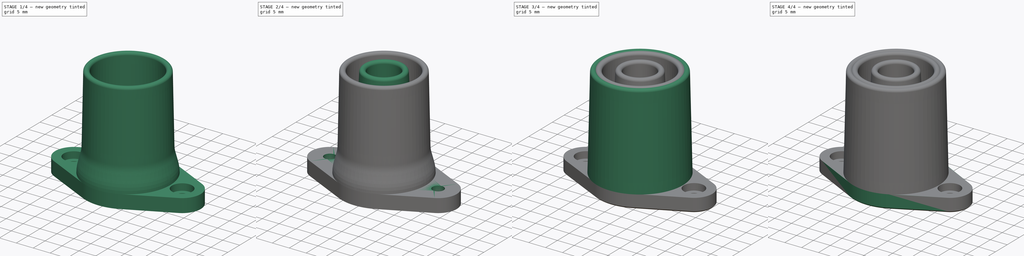
[diagram: build sequence overview — one tinted view per stage of 4, left to right]
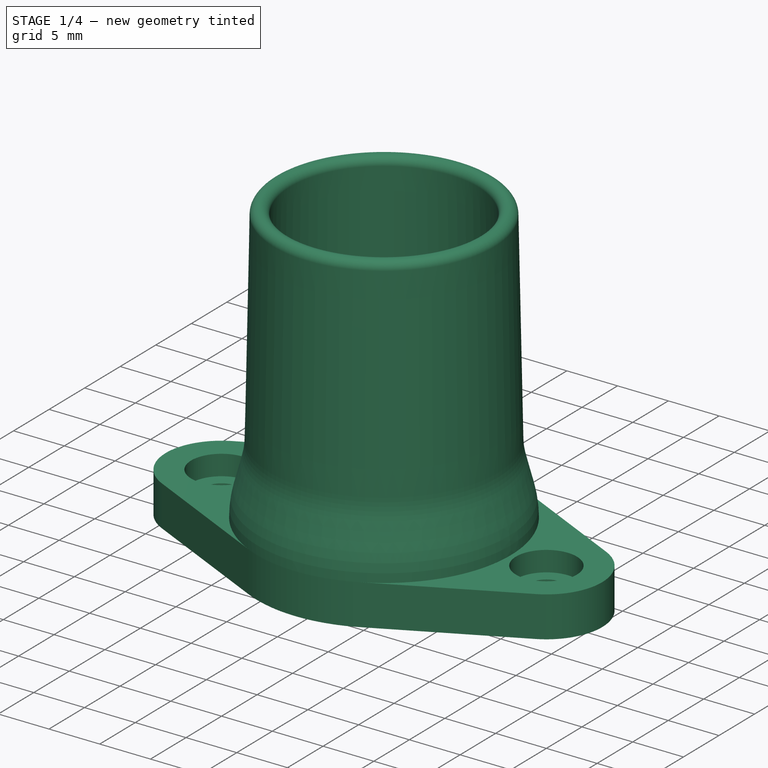
[diagram: stage 1 of 4 — iso view after this stage's code; geometry added in this stage tinted green]
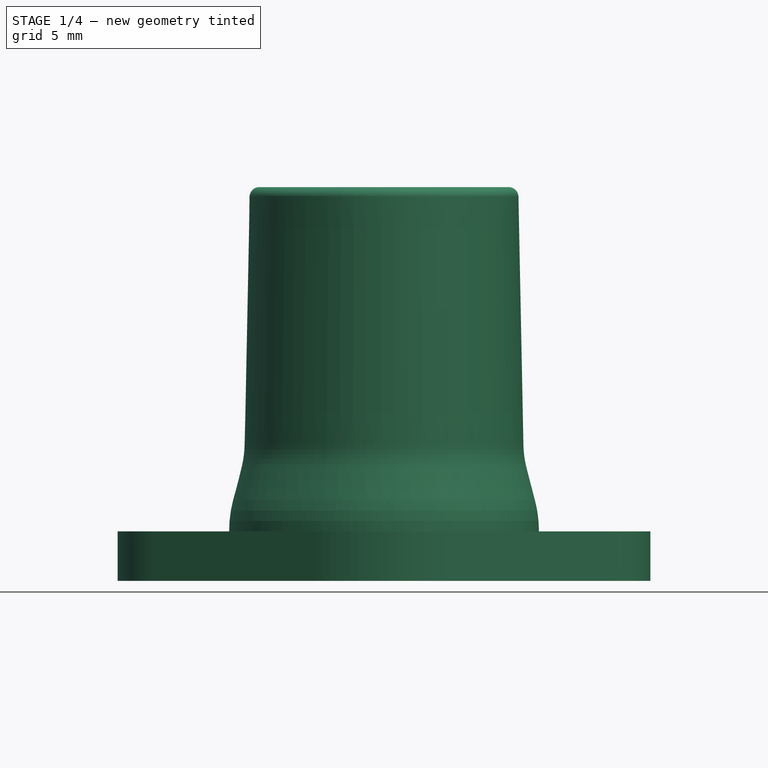
[diagram: stage 1 of 4 — front view after this stage's code; geometry added in this stage tinted green]
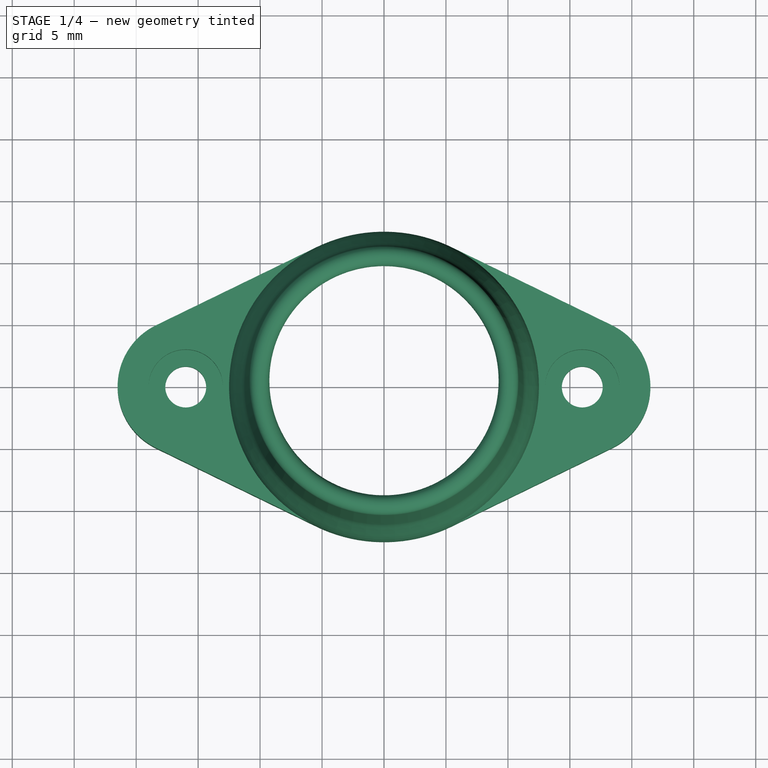
[diagram: stage 1 of 4 — top view after this stage's code; geometry added in this stage tinted green]
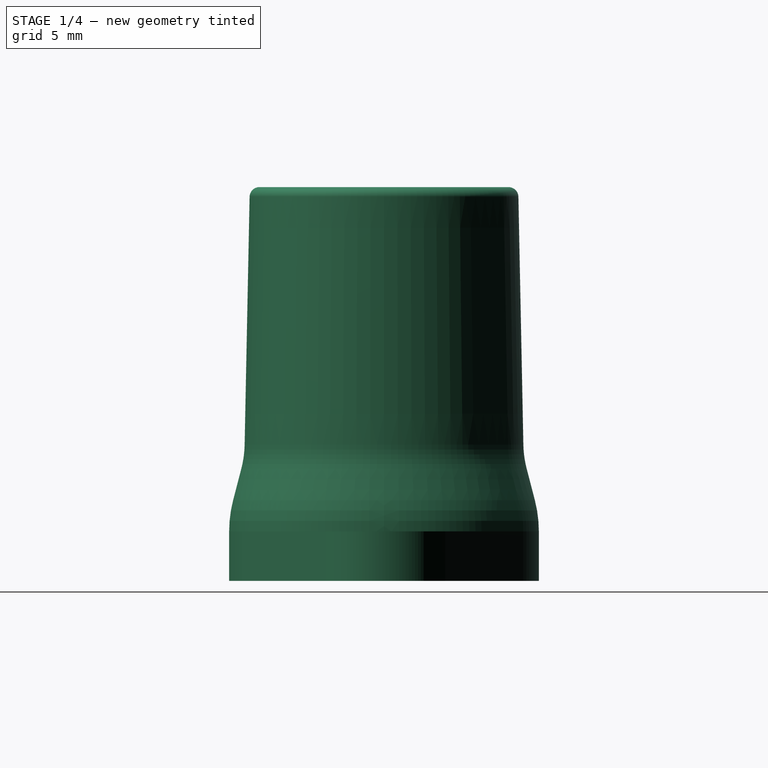
[diagram: stage 1 of 4 — right view after this stage's code; geometry added in this stage tinted green]
FCSTD DOCUMENT  (FreeCAD 1.1R20260414 (Git shallow))
Label: HoseAdapters
License: All rights reserved
LicenseURL: https://en.wikipedia.org/wiki/All_rights_reserved
objects: Sketcher::SketchObject×9, App::Point×3, PartDesign::Revolution×3, PartDesign::Pad×3, PartDesign::Pocket×3, PartDesign::Chamfer×3, PartDesign::Body×3
note: 57 computed .brp shape members not serialized (recipe doc carries the construction recipe); baked Part::Feature solids carry a one-line shape summary decoded from their .brp

FEATURE [PartDesign::Body] Body004  label="12.5mmHoseAdapter"
  AllowCompound = true
  Group = -> [Sketch017,Revolution001,Sketch020,Pad001,Sketch019,Pocket001,Chamfer001]
  Origin = -> Origin010
  Placement = pos=(0,60,0) rot=(0,0,1;0rad)
  Tip = -> Chamfer001
FEATURE [App::Point] Origin013
  Role = Origin
FEATURE [Sketcher::SketchObject] Sketch021  label="Tube22mmSketch"
  ArcFitTolerance = 1e-06
  AttachmentSupport = -> [Origin012]
  ExternalTypes = [0]
  FullyConstrained = true
  MakeInternals = false
  MapMode = 5
  Placement = pos=(0,0,0) rot=(1,0,0;1.5708rad)
  _ExternalGeoVersion = 1
  sketch-geometry (10):
    g0: LineSegment StartX=11.25 StartY=11 StartZ=0 EndX=10.85 EndY=31 EndZ=0
    g1: ArcOfCircle CenterX=10.0502 CenterY=30.984 CenterZ=0 NormalX=0 NormalY=0 NormalZ=1 AngleXU=0 Radius=0.8 StartAngle=0.0199973 EndAngle=3.16159
    g2: LineSegment StartX=9.25032 StartY=30.968 StartZ=0 EndX=9.65032 EndY=10.968 EndZ=0
    g3: LineSegment StartX=10.7 StartY=4 StartZ=0 EndX=12.5 EndY=4 EndZ=0
    g4: LineSegment StartX=12.1784 StartY=6.51548 StartZ=0 EndX=11.5184 EndY=9.05497 EndZ=0
    g5: LineSegment StartX=10.5497 StartY=5.56256 StartZ=0 EndX=9.83156 EndY=9.2624 EndZ=0
    g6: ArcOfCircle CenterX=19.6483 CenterY=11.168 CenterZ=0 NormalX=0 NormalY=0 NormalZ=1 AngleXU=0 Radius=8.4 StartAngle=3.16159 EndAngle=3.39587
    g7: ArcOfCircle CenterX=19.6483 CenterY=11.168 CenterZ=0 NormalX=0 NormalY=0 NormalZ=1 AngleXU=0 Radius=10 StartAngle=3.16159 EndAngle=3.33332
    g8: ArcOfCircle CenterX=2.5 CenterY=4 CenterZ=0 NormalX=0 NormalY=0 NormalZ=1 AngleXU=0 Radius=10 StartAngle=0 EndAngle=0.254279
    g9: ArcOfCircle CenterX=2.5 CenterY=4 CenterZ=0 NormalX=0 NormalY=0 NormalZ=1 AngleXU=0 Radius=8.2 StartAngle=0 EndAngle=0.191729
  constraints (25):
    c: Radius(g1) = 0.8
    c: Tangent(g1,g0) = -1.5708
    c: Tangent(g2,g1) = -1.5708
    c: Distance(g3,g-2) = 12.5
    c: Distance(g3,g3) = 1.8
    c: Tangent(g0,g6) = 1.5708
    c: Tangent(g4,g6) = 1.5708
    c: Tangent(g2,g7) = -1.5708
    c: Tangent(g5,g7) = 1.5708
    c: Coincident(g7,g6)
    c: Coincident(g8,g3)
    c: Coincident(g9,g3)
    c: Tangent(g8,g4) = -1.5708
    c: Tangent(g5,g9) = -1.5708
    c: Equal(g7,g8)
    c: DistanceY(g0,g0) = 20
    c: Radius(g7) = 10
    c: Horizontal(g3)
    c: Coincident(g9,g8)
    c: Distance(g8,g-1) = 4
    c: Horizontal(g3,g8)
    c: DistanceY(g3,g0) = 7
    c: Parallel(g0,g2)
    c: Distance(g0,g-2) = 10.85
    c: Distance(g0,g-2) = 11.25
FEATURE [PartDesign::Revolution] Revolution002  label="Tube22mm"
  Angle = 360
  Angle2 = 0
  Axis = (0,2e-16,1)
  Base = (0,0,0)
  FuseOrder = 0
  Profile = -> Sketch021
  ReferenceAxis = -> Sketch021 [V_Axis]
  Refine = true
  Reversed = true
  Suppressed = false
  Type = 0
FEATURE [Sketcher::SketchObject] Sketch023  label="OutletFlange22mmSketch"
  ArcFitTolerance = 1e-06
  AttachmentSupport = -> [Revolution002]
  ExternalTypes = [0]
  FullyConstrained = true
  MakeInternals = false
  MapMode = 5
  Placement = pos=(0,9e-16,4) rot=(1,0,0;3.14159rad)
  _ExternalGeoVersion = 1
  sketch-geometry (11):
    g0: Circle CenterX=0 CenterY=0 CenterZ=0 NormalX=0 NormalY=0 NormalZ=1 AngleXU=0 Radius=10.7
    g1: ArcOfCircle CenterX=0 CenterY=0 CenterZ=0 NormalX=0 NormalY=0 NormalZ=1 AngleXU=0 Radius=12.5 StartAngle=1.11798 EndAngle=2.02361
    g2: ArcOfCircle CenterX=-16 CenterY=0 CenterZ=0 NormalX=0 NormalY=0 NormalZ=1 AngleXU=0 Radius=5.5 StartAngle=2.02361 EndAngle=4.25957
    g3: ArcOfCircle CenterX=16 CenterY=0 CenterZ=0 NormalX=0 NormalY=0 NormalZ=1 AngleXU=0 Radius=5.5 StartAngle=5.16521 EndAngle=7.40117
    g4: LineSegment StartX=5.46875 StartY=11.2402 StartZ=0 EndX=18.4063 EndY=4.9457 EndZ=0
    g5: LineSegment StartX=-5.46875 StartY=11.2402 StartZ=0 EndX=-18.4063 EndY=4.9457 EndZ=0
    g6: LineSegment StartX=-18.4063 StartY=-4.9457 StartZ=0 EndX=-5.46875 EndY=-11.2402 EndZ=0
    g7: LineSegment StartX=5.46875 StartY=-11.2402 StartZ=0 EndX=18.4063 EndY=-4.9457 EndZ=0
    g8: Circle CenterX=-16 CenterY=0 CenterZ=0 NormalX=0 NormalY=0 NormalZ=1 AngleXU=0 Radius=1.65
    g9: Circle CenterX=16 CenterY=0 CenterZ=0 NormalX=0 NormalY=0 NormalZ=1 AngleXU=0 Radius=1.65
    g10: ArcOfCircle CenterX=0 CenterY=0 CenterZ=0 NormalX=0 NormalY=0 NormalZ=1 AngleXU=0 Radius=12.5 StartAngle=4.25957 EndAngle=5.16521
  constraints (23):
    c: Diameter(g0) = 21.4
    c: Coincident(g1,g0)
    c: Tangent(g4,g3) = 1.5708
    c: Tangent(g7,g3) = -1.5708
    c: Tangent(g4,g1) = 1.5708
    c: Tangent(g5,g1) = -1.5708
    c: Tangent(g5,g2) = -1.5708
    c: Tangent(g6,g2) = -1.5708
    c: Radius(g1) = 12.5
    c: Symmetric(g2,g3,g0)
    c: Horizontal(g2,g3)
    c: Equal(g3,g2)
    c: Radius(g3) = 5.5
    c: DistanceX(g2,g3) = 32
    c: Diameter(g8) = 3.3
    c: Equal(g8,g9)
    c: Coincident(g10,g0)
    c: Tangent(g10,g6) = -1.5708
    c: Tangent(g10,g7) = -1.5708
    c: Equal(g1,g10)
    c: Coincident(g0,g-1)
    c: Coincident(g8,g2)
    c: Coincident(g9,g3)
FEATURE [PartDesign::Pad] Pad002  label="OutletFlange22mm"
  BaseFeature = -> Revolution002
  Direction = (0,0,-1)
  Length = 4
  Length2 = 10
  Profile = -> Sketch023
  ReferenceAxis = -> Sketch023 [N_Axis]
  Refine = true
  SideType = 0
  Suppressed = false
  Type = 0
  Type2 = 0
FEATURE [Sketcher::SketchObject] Sketch022  label="OutletFlange22mmCountersinkSketch"
  ArcFitTolerance = 1e-06
  AttachmentSupport = -> [Pad002]
  ExternalTypes = [0,0,0]
  FullyConstrained = true
  MakeInternals = false
  MapMode = 5
  Placement = pos=(0,0,4) rot=(0,0,1;0rad)
  _ExternalGeoVersion = 1
  sketch-geometry (2):
    g0: Circle CenterX=-16 CenterY=0 CenterZ=0 NormalX=0 NormalY=0 NormalZ=1 AngleXU=0 Radius=3
    g1: Circle CenterX=16 CenterY=0 CenterZ=0 NormalX=0 NormalY=0 NormalZ=1 AngleXU=0 Radius=3
  constraints (4):
    c: Coincident(g0,g-3)
    c: Diameter(g1) = 6
    c: Equal(g1,g0)
    c: Coincident(g1,g-4)
FEATURE [PartDesign::Pocket] Pocket002  label="OutletFlange22mmCountersink"
  BaseFeature = -> Pad002
  Direction = (0,0,-1)
  Length = 2
  Length2 = 5
  Profile = -> Sketch022
  ReferenceAxis = -> Sketch022 [N_Axis]
  Refine = true
  SideType = 0
  Suppressed = false
  Type = 0
  Type2 = 0
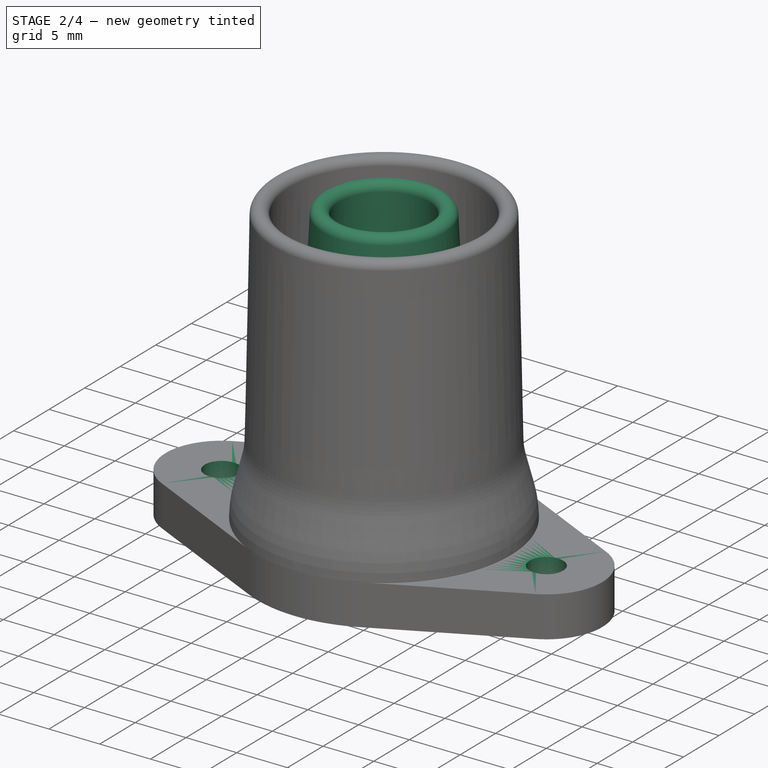
[diagram: stage 2 of 4 — iso view after this stage's code; geometry added in this stage tinted green]
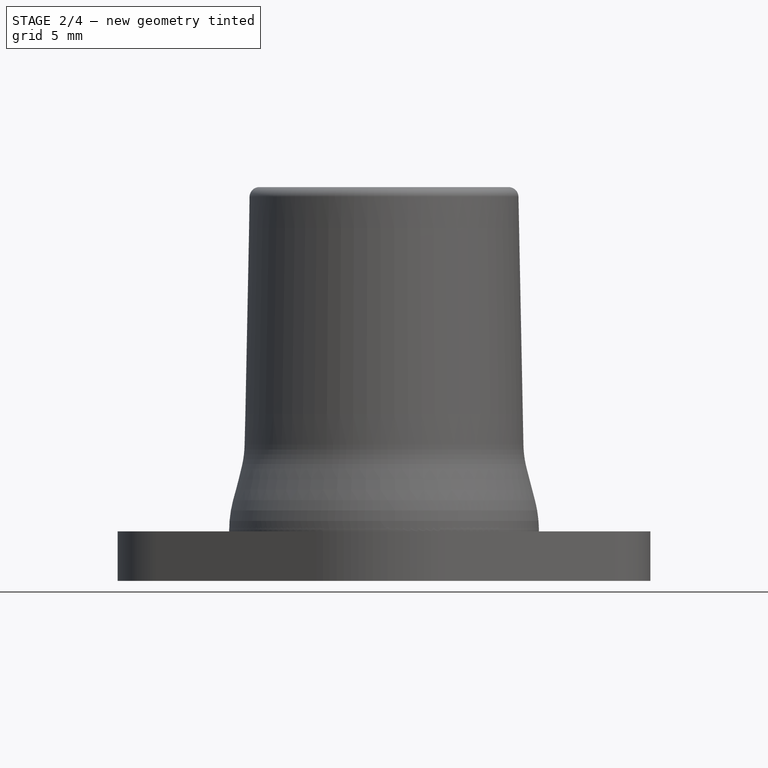
[diagram: stage 2 of 4 — front view after this stage's code; geometry added in this stage tinted green]
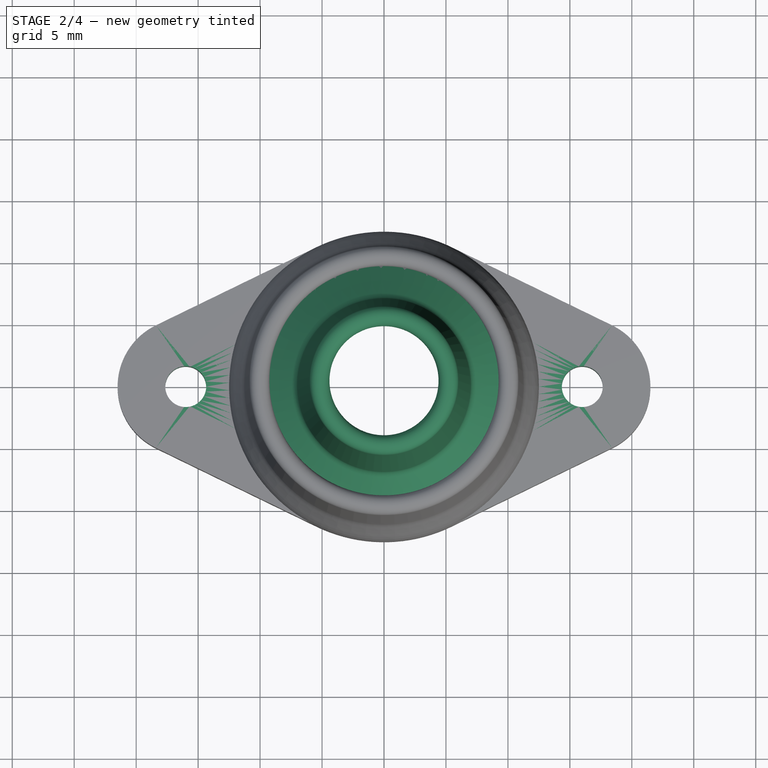
[diagram: stage 2 of 4 — top view after this stage's code; geometry added in this stage tinted green]
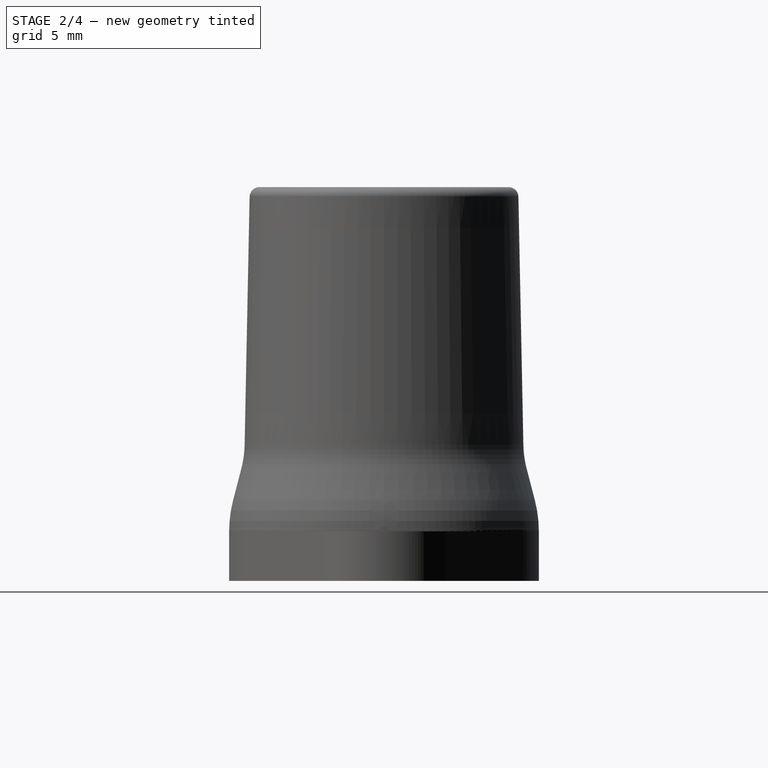
[diagram: stage 2 of 4 — right view after this stage's code; geometry added in this stage tinted green]
FEATURE [PartDesign::Body] Body003  label="25mmHoseAdapter"
  AllowCompound = true
  Group = -> [Sketch013,Revolution,Sketch016,Pad,Sketch015,Pocket,Chamfer]
  Origin = -> Origin008
  Tip = -> Chamfer
FEATURE [App::Point] Origin011
  Role = Origin
FEATURE [Sketcher::SketchObject] Sketch017  label="Tube19mmSketch"
  ArcFitTolerance = 1e-06
  AttachmentSupport = -> [Origin010]
  ExternalTypes = [0]
  FullyConstrained = true
  MakeInternals = false
  MapMode = 5
  Placement = pos=(0,0,0) rot=(1,0,0;1.5708rad)
  _ExternalGeoVersion = 1
  sketch-geometry (12):
    g0: LineSegment StartX=7 StartY=11 StartZ=0 EndX=6 EndY=31 EndZ=0
    g1: ArcOfCircle CenterX=5.201 CenterY=30.96 CenterZ=0 NormalX=0 NormalY=0 NormalZ=1 AngleXU=0 Radius=0.8 StartAngle=0.0499584 EndAngle=3.19155
    g2: LineSegment StartX=4.402 StartY=30.9201 StartZ=0 EndX=5.402 EndY=10.9201 EndZ=0
    g3: LineSegment StartX=10.7 StartY=4 StartZ=0 EndX=12.5 EndY=4 EndZ=0
    g4: LineSegment StartX=11.5535 StartY=6.18707 StartZ=0 EndX=7.43997 EndY=10.0493 EndZ=0
    g5: LineSegment StartX=10.3515 StartY=4.84557 StartZ=0 EndX=6.26956 EndY=8.95599 EndZ=0
    g6: ArcOfCircle CenterX=8.39825 CenterY=11.0699 CenterZ=0 NormalX=0 NormalY=0 NormalZ=1 AngleXU=0 Radius=1.4 StartAngle=3.19155 EndAngle=3.95849
    g7: ArcOfCircle CenterX=8.39825 CenterY=11.0699 CenterZ=0 NormalX=0 NormalY=0 NormalZ=1 AngleXU=0 Radius=3 StartAngle=3.19155 EndAngle=3.92351
    g8: ArcOfCircle CenterX=9.5 CenterY=4 CenterZ=0 NormalX=0 NormalY=0 NormalZ=1 AngleXU=0 Radius=3 StartAngle=0 EndAngle=0.816894
    g9: ArcOfCircle CenterX=9.5 CenterY=4 CenterZ=0 NormalX=0 NormalY=0 NormalZ=1 AngleXU=0 Radius=1.2 StartAngle=0 EndAngle=0.781919
    g10: LineSegment [constr] StartX=6 StartY=31 StartZ=0 EndX=6.25 EndY=26 EndZ=0
    g11: LineSegment [constr] StartX=6.25 StartY=26 StartZ=0 EndX=7 EndY=11 EndZ=0
  constraints (30):
    c: Radius(g1) = 0.8
    c: Tangent(g1,g0) = -1.5708
    c: Tangent(g2,g1) = -1.5708
    c: Distance(g3,g-2) = 12.5
    c: Distance(g3,g3) = 1.8
    c: Tangent(g0,g6) = 1.5708
    c: Tangent(g4,g6) = 1.5708
    c: Tangent(g2,g7) = -1.5708
    c: Tangent(g5,g7) = 1.5708
    c: Coincident(g7,g6)
    c: Coincident(g8,g3)
    c: Coincident(g9,g3)
    c: Tangent(g8,g4) = -1.5708
    c: Tangent(g5,g9) = -1.5708
    c: Equal(g7,g8)
    c: Radius(g7) = 3
    c: Horizontal(g3)
    c: Coincident(g9,g8)
    c: Distance(g8,g-1) = 4
    c: Horizontal(g3,g8)
    c: DistanceY(g3,g0) = 7
    c: Coincident(g10,g0)
    c: PointOnObject(g10,g0)
    c: Coincident(g11,g10)
    c: Coincident(g11,g0)
    c: DistanceY(g10,g0) = 5
    c: DistanceY(g0,g10) = 15
    c: Parallel(g2,g0)
    c: DistanceX(g-1,g10) = 6.25
    c: DistanceX(g-1,g0) = 7
FEATURE [PartDesign::Revolution] Revolution001  label="Tube19mm"
  Angle = 360
  Angle2 = 0
  Axis = (0,2e-16,1)
  Base = (0,0,0)
  FuseOrder = 0
  Profile = -> Sketch017
  ReferenceAxis = -> Sketch017 [V_Axis]
  Refine = true
  Reversed = true
  Suppressed = false
  Type = 0
FEATURE [Sketcher::SketchObject] Sketch020  label="OutletFlange19mmSketch"
  ArcFitTolerance = 1e-06
  AttachmentSupport = -> [Revolution001]
  ExternalGeometry = -> [Revolution001]
  ExternalTypes = [0]
  FullyConstrained = true
  MakeInternals = false
  MapMode = 5
  Placement = pos=(0,9e-16,4) rot=(1,0,0;3.14159rad)
  _ExternalGeoVersion = 1
  sketch-geometry (11):
    g0: Circle CenterX=0 CenterY=0 CenterZ=0 NormalX=0 NormalY=0 NormalZ=1 AngleXU=0 Radius=10.7
    g1: ArcOfCircle CenterX=0 CenterY=0 CenterZ=0 NormalX=0 NormalY=0 NormalZ=1 AngleXU=0 Radius=12.5 StartAngle=1.11798 EndAngle=2.02361
    g2: ArcOfCircle CenterX=-16 CenterY=0 CenterZ=0 NormalX=0 NormalY=0 NormalZ=1 AngleXU=0 Radius=5.5 StartAngle=2.02361 EndAngle=4.25957
    g3: ArcOfCircle CenterX=16 CenterY=0 CenterZ=0 NormalX=0 NormalY=0 NormalZ=1 AngleXU=0 Radius=5.5 StartAngle=5.16521 EndAngle=7.40117
    g4: LineSegment StartX=5.46875 StartY=11.2402 StartZ=0 EndX=18.4063 EndY=4.9457 EndZ=0
    g5: LineSegment StartX=-5.46875 StartY=11.2402 StartZ=0 EndX=-18.4063 EndY=4.9457 EndZ=0
    g6: LineSegment StartX=-18.4063 StartY=-4.9457 StartZ=0 EndX=-5.46875 EndY=-11.2402 EndZ=0
    g7: LineSegment StartX=5.46875 StartY=-11.2402 StartZ=0 EndX=18.4063 EndY=-4.9457 EndZ=0
    g8: Circle CenterX=-16 CenterY=0 CenterZ=0 NormalX=0 NormalY=0 NormalZ=1 AngleXU=0 Radius=1.65
    g9: Circle CenterX=16 CenterY=0 CenterZ=0 NormalX=0 NormalY=0 NormalZ=1 AngleXU=0 Radius=1.65
    g10: ArcOfCircle CenterX=0 CenterY=0 CenterZ=0 NormalX=0 NormalY=0 NormalZ=1 AngleXU=0 Radius=12.5 StartAngle=4.25957 EndAngle=5.16521
  constraints (23):
    c: Diameter(g0) = 21.4
    c: Coincident(g1,g0)
    c: Tangent(g4,g3) = 1.5708
    c: Tangent(g7,g3) = -1.5708
    c: Tangent(g4,g1) = 1.5708
    c: Tangent(g5,g1) = -1.5708
    c: Tangent(g5,g2) = -1.5708
    c: Tangent(g6,g2) = -1.5708
    c: Symmetric(g2,g3,g0)
    c: Horizontal(g2,g3)
    c: Equal(g3,g2)
    c: Radius(g3) = 5.5
    c: DistanceX(g2,g3) = 32
    c: Diameter(g8) = 3.3
    c: Equal(g8,g9)
    c: Coincident(g10,g0)
    c: Tangent(g10,g6) = -1.5708
    c: Tangent(g10,g7) = -1.5708
    c: Equal(g1,g10)
    c: Coincident(g0,g-1)
    c: Coincident(g8,g2)
    c: Coincident(g9,g3)
    c: Equal(g1,g-3)
FEATURE [PartDesign::Pad] Pad001  label="OutletFlange19mm"
  BaseFeature = -> Revolution001
  Direction = (0,0,-1)
  Length = 4
  Length2 = 10
  Profile = -> Sketch020
  ReferenceAxis = -> Sketch020 [N_Axis]
  Refine = true
  SideType = 0
  Suppressed = false
  Type = 0
  Type2 = 0
FEATURE [PartDesign::Chamfer] Chamfer002  label="Chamfer22mm"
  Angle = 45
  Base = -> Pocket002 [Edge37,Edge38,Edge39,Edge34]
  BaseFeature = -> Pocket002
  ChamferType = 0
  FlipDirection = false
  Refine = true
  Size = 0.4
  Size2 = 1
  SupportTransform = false
  Suppressed = false
  UseAllEdges = false
FEATURE [PartDesign::Body] Body005  label="22mmISOTaperHoseAdapter"
  AllowCompound = true
  Group = -> [Sketch021,Revolution002,Sketch023,Pad002,Sketch022,Pocket002,Chamfer002]
  Origin = -> Origin012
  Placement = pos=(0,30,0) rot=(0,0,1;0rad)
  Tip = -> Chamfer002
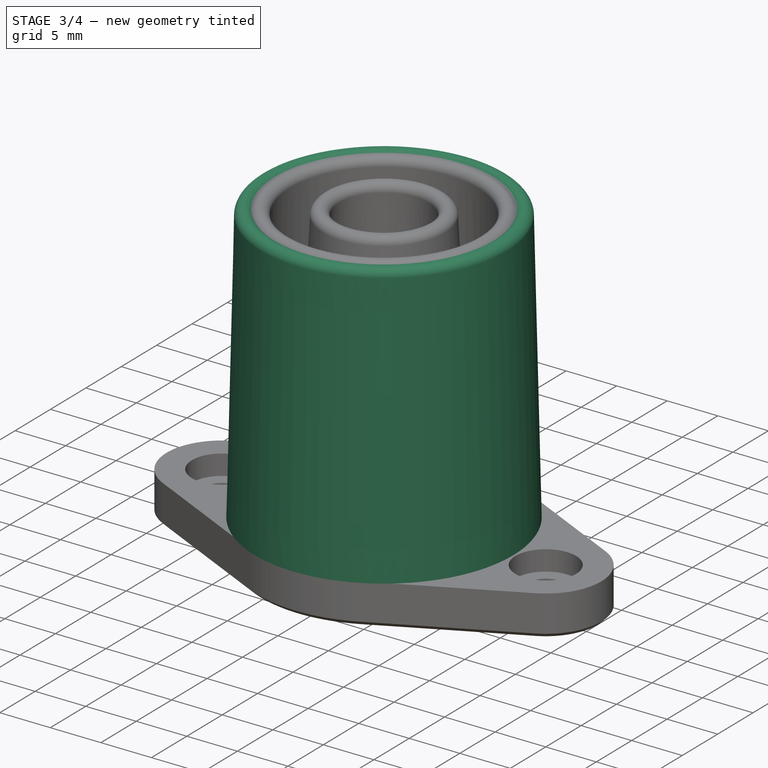
[diagram: stage 3 of 4 — iso view after this stage's code; geometry added in this stage tinted green]
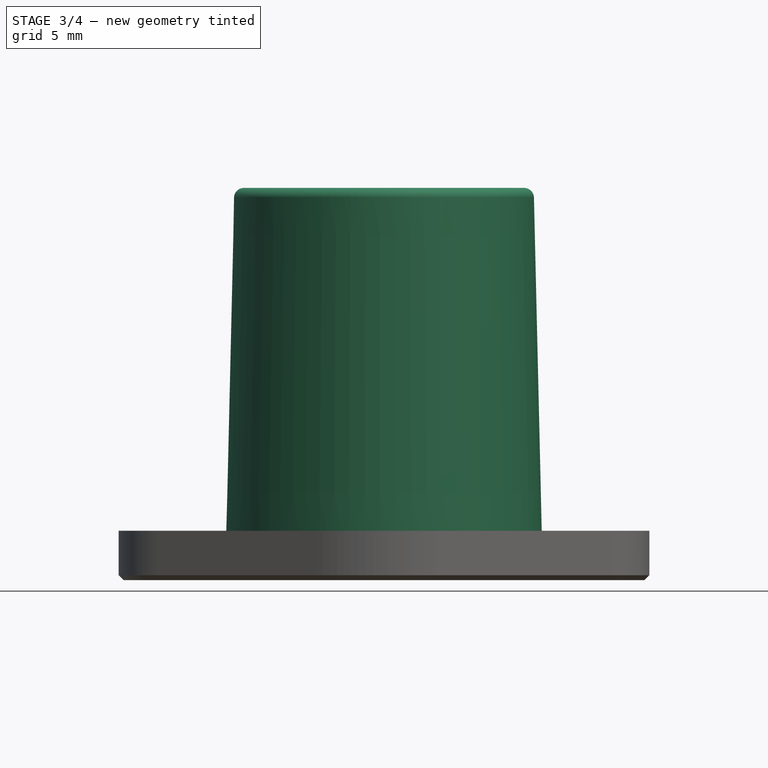
[diagram: stage 3 of 4 — front view after this stage's code; geometry added in this stage tinted green]
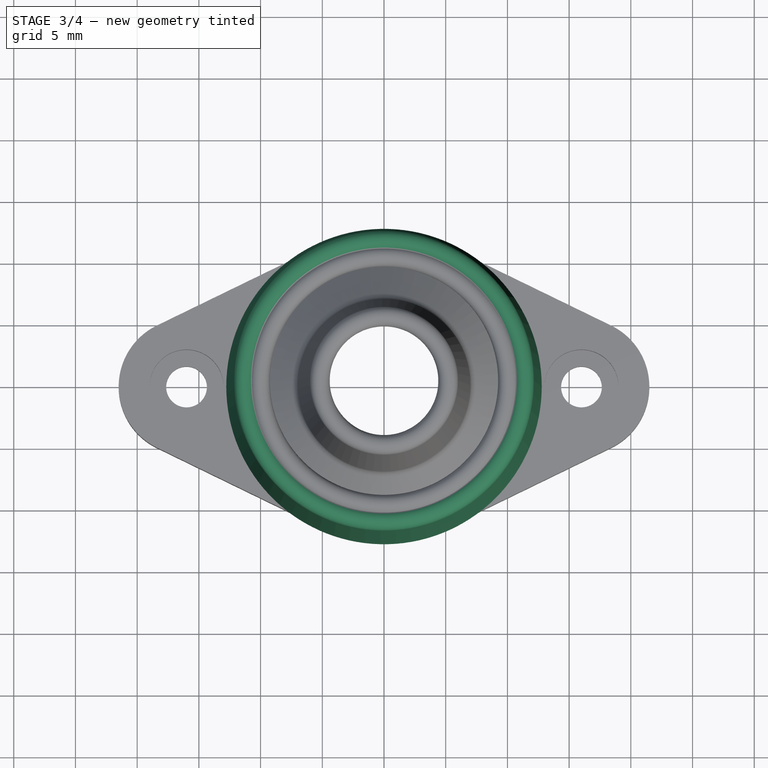
[diagram: stage 3 of 4 — top view after this stage's code; geometry added in this stage tinted green]
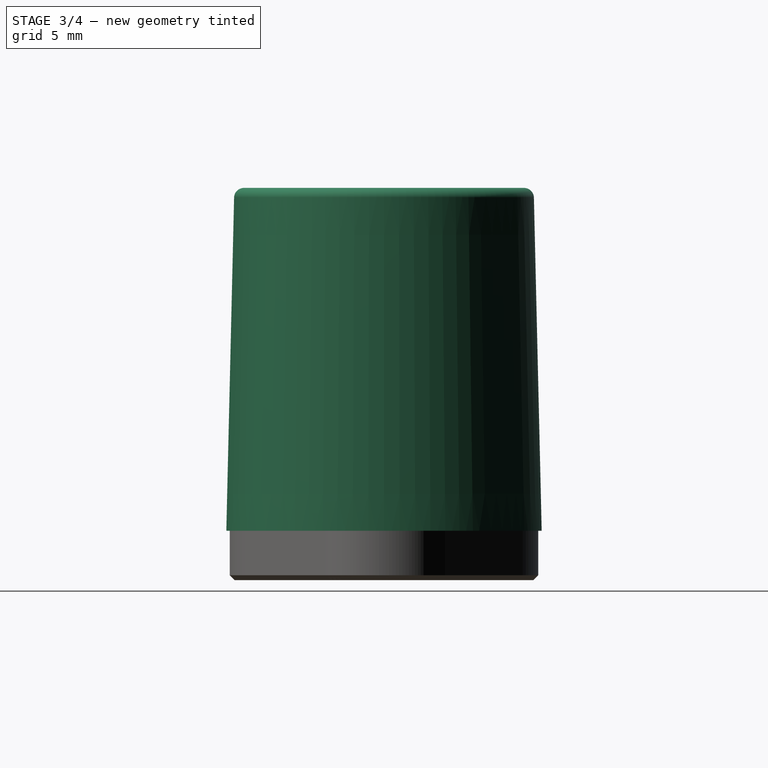
[diagram: stage 3 of 4 — right view after this stage's code; geometry added in this stage tinted green]
FEATURE [App::Point] Origin009
  Role = Origin
FEATURE [Sketcher::SketchObject] Sketch013  label="Tube25mmSketch"
  ArcFitTolerance = 1e-06
  AttachmentSupport = -> [Origin008]
  ExternalTypes = [0]
  FullyConstrained = true
  MakeInternals = false
  MapMode = 5
  Placement = pos=(0,0,0) rot=(1,0,0;1.5708rad)
  _ExternalGeoVersion = 1
  sketch-geometry (6):
    g0: LineSegment StartX=12.78 StartY=4 StartZ=0 EndX=12.15 EndY=31 EndZ=0
    g1: ArcOfCircle CenterX=11.3502 CenterY=30.9813 CenterZ=0 NormalX=0 NormalY=0 NormalZ=1 AngleXU=0 Radius=0.8 StartAngle=0.0233291 EndAngle=3.16492
    g2: LineSegment StartX=10.5504 StartY=30.9627 StartZ=0 EndX=11.1796 EndY=4 EndZ=0
    g3: LineSegment StartX=11.1796 StartY=4 StartZ=0 EndX=12.78 EndY=4 EndZ=0
    g4: LineSegment [constr] StartX=12.15 StartY=31 StartZ=0 EndX=12.5 EndY=16 EndZ=0
    g5: LineSegment [constr] StartX=12.5 StartY=16 StartZ=0 EndX=12.78 EndY=4 EndZ=0
  constraints (16):
    c: Radius(g1) = 0.8
    c: Tangent(g1,g0) = -1.5708
    c: Tangent(g2,g1) = -1.5708
    c: Coincident(g0,g3)
    c: Coincident(g2,g3)
    c: Horizontal(g3)
    c: Distance(g2,g-1) = 4
    c: Coincident(g4,g0)
    c: PointOnObject(g4,g0)
    c: Coincident(g5,g4)
    c: Coincident(g5,g0)
    c: Distance(g4,g-2) = 12.5
    c: DistanceY(g4,g0) = 15
    c: DistanceY(g0,g4) = 12
    c: Parallel(g0,g2)
    c: Distance(g0,g-2) = 12.15
FEATURE [PartDesign::Revolution] Revolution  label="Tube25mm"
  Angle = 360
  Angle2 = 0
  Axis = (0,2e-16,1)
  Base = (0,0,0)
  FuseOrder = 0
  Profile = -> Sketch013
  ReferenceAxis = -> Sketch013 [V_Axis]
  Refine = true
  Reversed = true
  Suppressed = false
  Type = 0
FEATURE [Sketcher::SketchObject] Sketch019  label="OutletFlange19mmCountersinkSketch"
  ArcFitTolerance = 1e-06
  AttachmentSupport = -> [Pad001]
  ExternalTypes = [0,0,0]
  FullyConstrained = true
  MakeInternals = false
  MapMode = 5
  Placement = pos=(0,0,4) rot=(0,0,1;0rad)
  _ExternalGeoVersion = 1
  sketch-geometry (2):
    g0: Circle CenterX=-16 CenterY=0 CenterZ=0 NormalX=0 NormalY=0 NormalZ=1 AngleXU=0 Radius=3
    g1: Circle CenterX=16 CenterY=0 CenterZ=0 NormalX=0 NormalY=0 NormalZ=1 AngleXU=0 Radius=3
  constraints (4):
    c: Coincident(g0,g-3)
    c: Diameter(g1) = 6
    c: Equal(g1,g0)
    c: Coincident(g1,g-4)
FEATURE [PartDesign::Pocket] Pocket001  label="OutletFlange19mmCountersink"
  BaseFeature = -> Pad001
  Direction = (0,0,-1)
  Length = 2
  Length2 = 5
  Profile = -> Sketch019
  ReferenceAxis = -> Sketch019 [N_Axis]
  Refine = true
  SideType = 0
  Suppressed = false
  Type = 0
  Type2 = 0
FEATURE [PartDesign::Chamfer] Chamfer001  label="Chamfer19mm"
  Angle = 45
  Base = -> Pocket001 [Edge37,Edge38,Edge39,Edge34]
  BaseFeature = -> Pocket001
  ChamferType = 0
  FlipDirection = false
  Refine = true
  Size = 0.4
  Size2 = 1
  SupportTransform = false
  Suppressed = false
  UseAllEdges = false
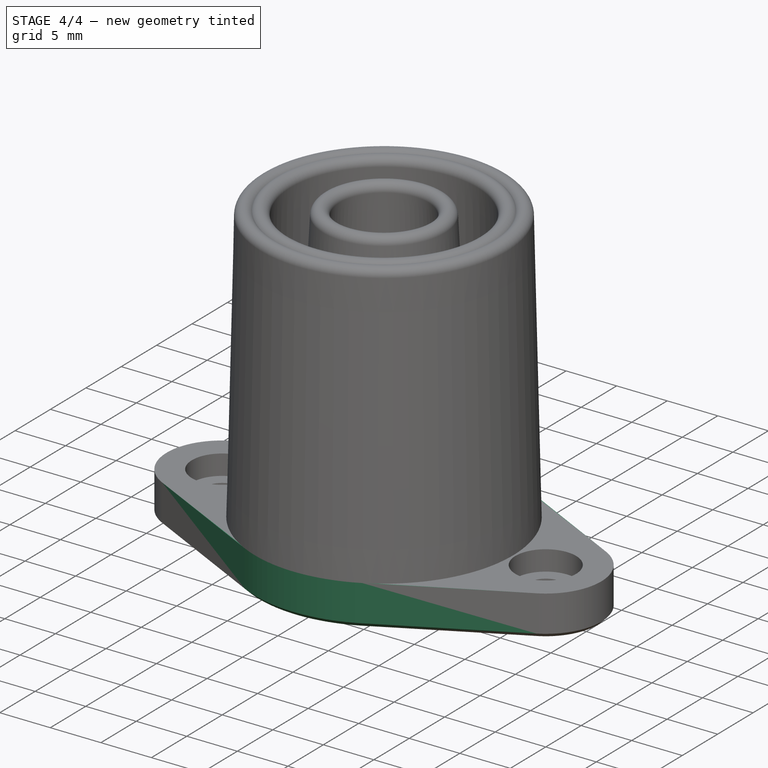
[diagram: stage 4 of 4 — iso view after this stage's code; geometry added in this stage tinted green]
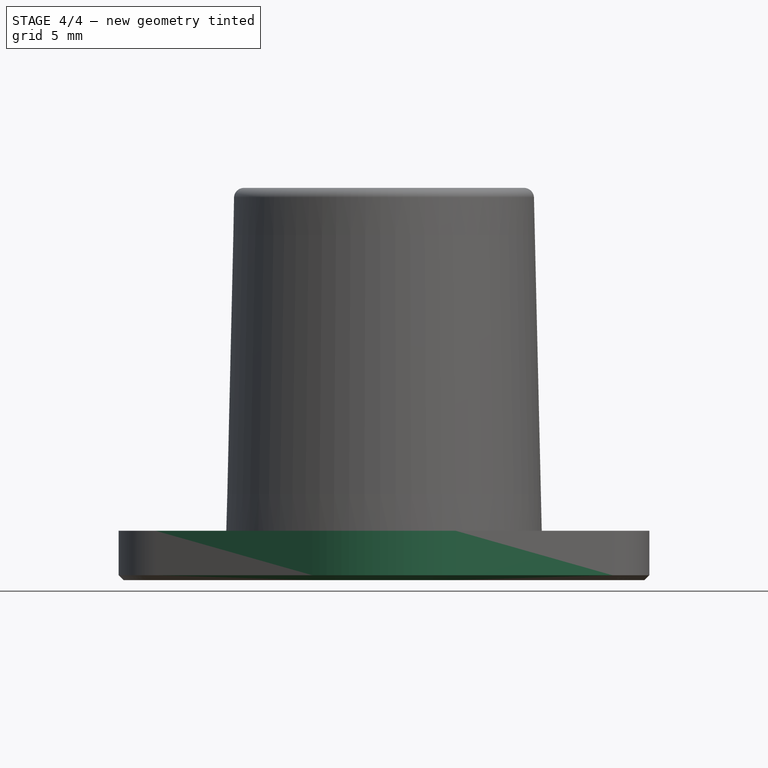
[diagram: stage 4 of 4 — front view after this stage's code; geometry added in this stage tinted green]
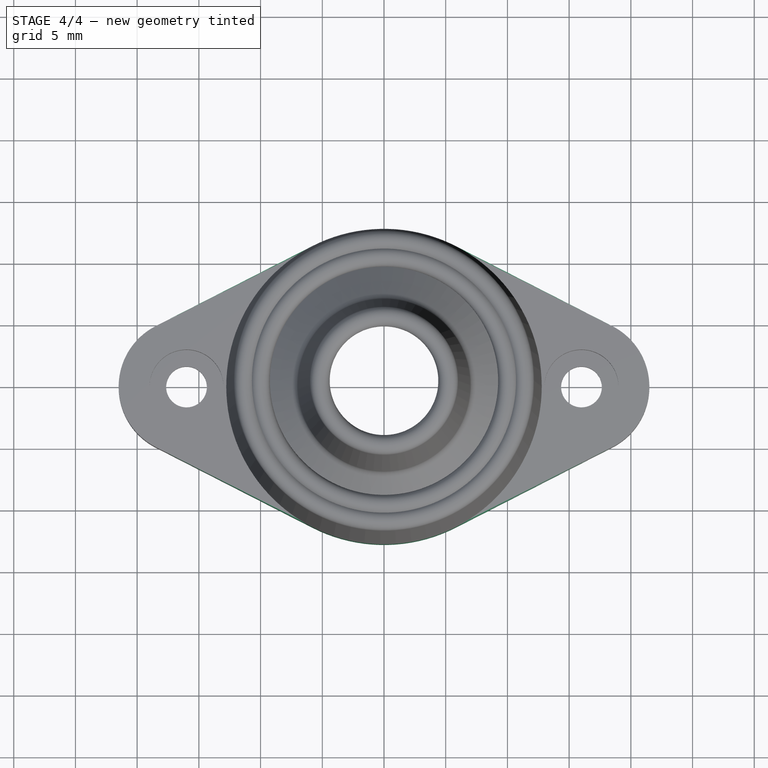
[diagram: stage 4 of 4 — top view after this stage's code; geometry added in this stage tinted green]
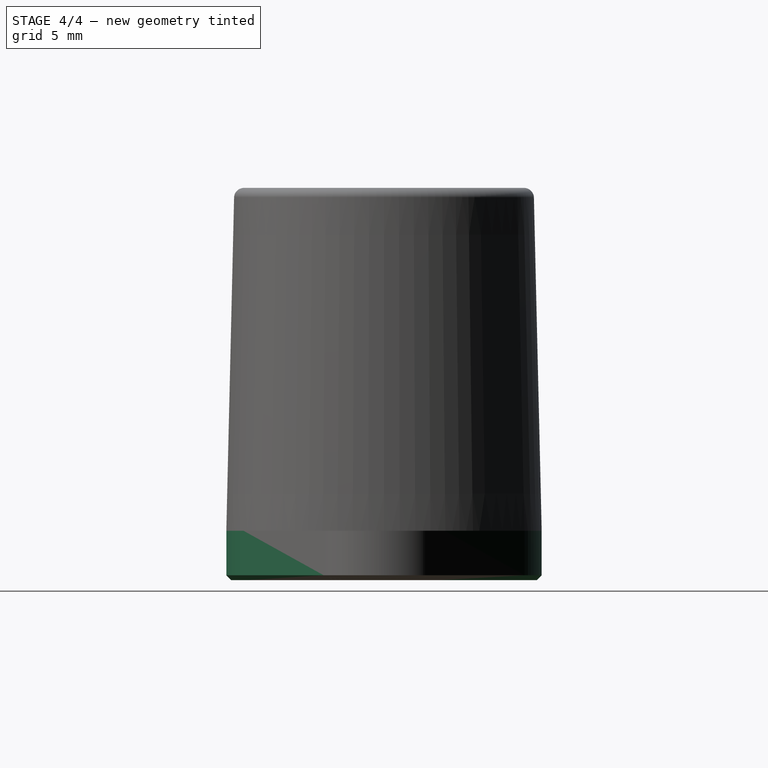
[diagram: stage 4 of 4 — right view after this stage's code; geometry added in this stage tinted green]
FEATURE [Sketcher::SketchObject] Sketch016  label="OutletFlange25mmSketch"
  ArcFitTolerance = 1e-06
  AttachmentSupport = -> [Revolution]
  ExternalGeometry = -> [Revolution]
  ExternalTypes = [0]
  FullyConstrained = true
  MakeInternals = false
  MapMode = 5
  Placement = pos=(0,9e-16,4) rot=(1,0,0;3.14159rad)
  _ExternalGeoVersion = 1
  sketch-geometry (11):
    g0: Circle CenterX=0 CenterY=0 CenterZ=0 NormalX=0 NormalY=0 NormalZ=1 AngleXU=0 Radius=10.9
    g1: ArcOfCircle CenterX=0 CenterY=0 CenterZ=0 NormalX=0 NormalY=0 NormalZ=1 AngleXU=0 Radius=12.78 StartAngle=1.09842 EndAngle=2.04317
    g2: ArcOfCircle CenterX=-16 CenterY=0 CenterZ=0 NormalX=0 NormalY=0 NormalZ=1 AngleXU=0 Radius=5.5 StartAngle=2.04317 EndAngle=4.24002
    g3: ArcOfCircle CenterX=16 CenterY=0 CenterZ=0 NormalX=0 NormalY=0 NormalZ=1 AngleXU=0 Radius=5.5 StartAngle=5.18476 EndAngle=7.38161
    g4: LineSegment StartX=5.8149 StartY=11.3805 StartZ=0 EndX=18.5025 EndY=4.8977 EndZ=0
    g5: LineSegment StartX=-5.8149 StartY=11.3805 StartZ=0 EndX=-18.5025 EndY=4.8977 EndZ=0
    g6: LineSegment StartX=-18.5025 StartY=-4.8977 StartZ=0 EndX=-5.8149 EndY=-11.3805 EndZ=0
    g7: LineSegment StartX=5.8149 StartY=-11.3805 StartZ=0 EndX=18.5025 EndY=-4.8977 EndZ=0
    g8: Circle CenterX=-16 CenterY=0 CenterZ=0 NormalX=0 NormalY=0 NormalZ=1 AngleXU=0 Radius=1.65
    g9: Circle CenterX=16 CenterY=0 CenterZ=0 NormalX=0 NormalY=0 NormalZ=1 AngleXU=0 Radius=1.65
    g10: ArcOfCircle CenterX=0 CenterY=0 CenterZ=0 NormalX=0 NormalY=0 NormalZ=1 AngleXU=0 Radius=12.78 StartAngle=4.24002 EndAngle=5.18476
  constraints (23):
    c: Diameter(g0) = 21.8
    c: Coincident(g1,g0)
    c: Tangent(g4,g3) = 1.5708
    c: Tangent(g7,g3) = -1.5708
    c: Tangent(g4,g1) = 1.5708
    c: Tangent(g5,g1) = -1.5708
    c: Tangent(g5,g2) = -1.5708
    c: Tangent(g6,g2) = -1.5708
    c: Symmetric(g2,g3,g0)
    c: Horizontal(g2,g3)
    c: Equal(g3,g2)
    c: Radius(g3) = 5.5
    c: DistanceX(g2,g3) = 32
    c: Diameter(g8) = 3.3
    c: Equal(g8,g9)
    c: Coincident(g10,g0)
    c: Tangent(g10,g6) = -1.5708
    c: Tangent(g10,g7) = -1.5708
    c: Equal(g1,g10)
    c: Coincident(g0,g-1)
    c: Coincident(g8,g2)
    c: Coincident(g9,g3)
    c: Equal(g1,g-3)
FEATURE [PartDesign::Pad] Pad  label="OutletFlange25mm"
  BaseFeature = -> Revolution
  Direction = (0,0,-1)
  Length = 4
  Length2 = 10
  Profile = -> Sketch016
  ReferenceAxis = -> Sketch016 [N_Axis]
  Refine = true
  SideType = 0
  Suppressed = false
  Type = 0
  Type2 = 0
FEATURE [Sketcher::SketchObject] Sketch015  label="OutletFlange25mmCountersinkSketch"
  ArcFitTolerance = 1e-06
  AttachmentSupport = -> [Pad]
  ExternalGeometry = -> [Pad]
  ExternalTypes = [0]
  FullyConstrained = true
  MakeInternals = false
  MapMode = 5
  Placement = pos=(0,0,4) rot=(0,0,1;0rad)
  _ExternalGeoVersion = 1
  sketch-geometry (2):
    g0: Circle CenterX=-16 CenterY=0 CenterZ=0 NormalX=0 NormalY=0 NormalZ=1 AngleXU=0 Radius=3
    g1: Circle CenterX=16 CenterY=0 CenterZ=0 NormalX=0 NormalY=0 NormalZ=1 AngleXU=0 Radius=3
  constraints (4):
    c: Coincident(g0,g-3)
    c: Diameter(g1) = 6
    c: Equal(g1,g0)
    c: Coincident(g1,g-4)
FEATURE [PartDesign::Pocket] Pocket  label="OutletFlange25mmCountersink"
  BaseFeature = -> Pad
  Direction = (0,0,-1)
  Length = 2
  Length2 = 5
  Profile = -> Sketch015
  ReferenceAxis = -> Sketch015 [N_Axis]
  Refine = true
  SideType = 0
  Suppressed = false
  Type = 0
  Type2 = 0
FEATURE [PartDesign::Chamfer] Chamfer  label="Chamfer25mm"
  Angle = 45
  Base = -> Pocket [Edge37,Edge38,Edge39,Edge29]
  BaseFeature = -> Pocket
  ChamferType = 0
  FlipDirection = false
  Refine = true
  Size = 0.4
  Size2 = 1
  SupportTransform = false
  Suppressed = false
  UseAllEdges = false
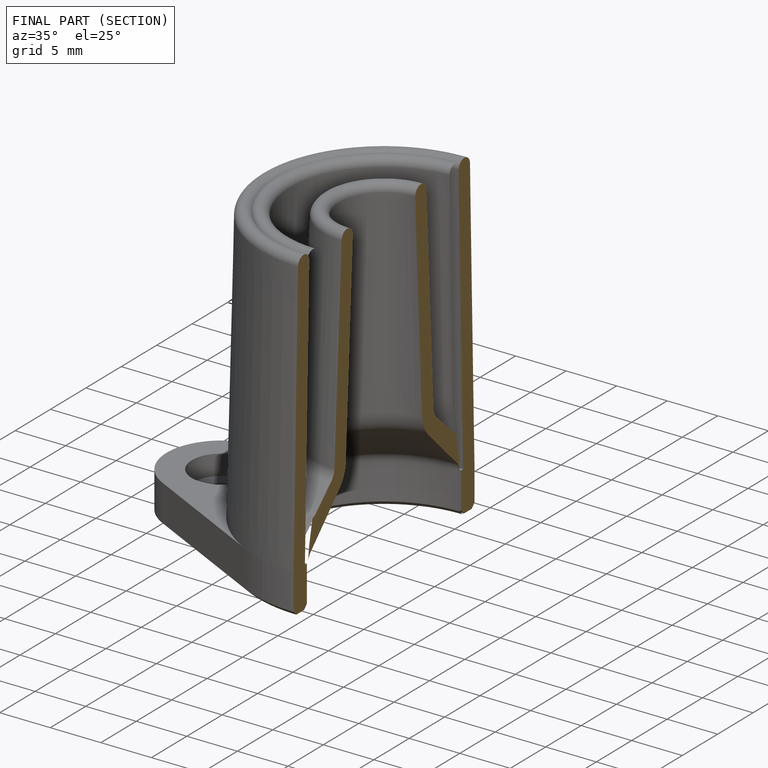
[diagram: finished part — half-section view (interior)]
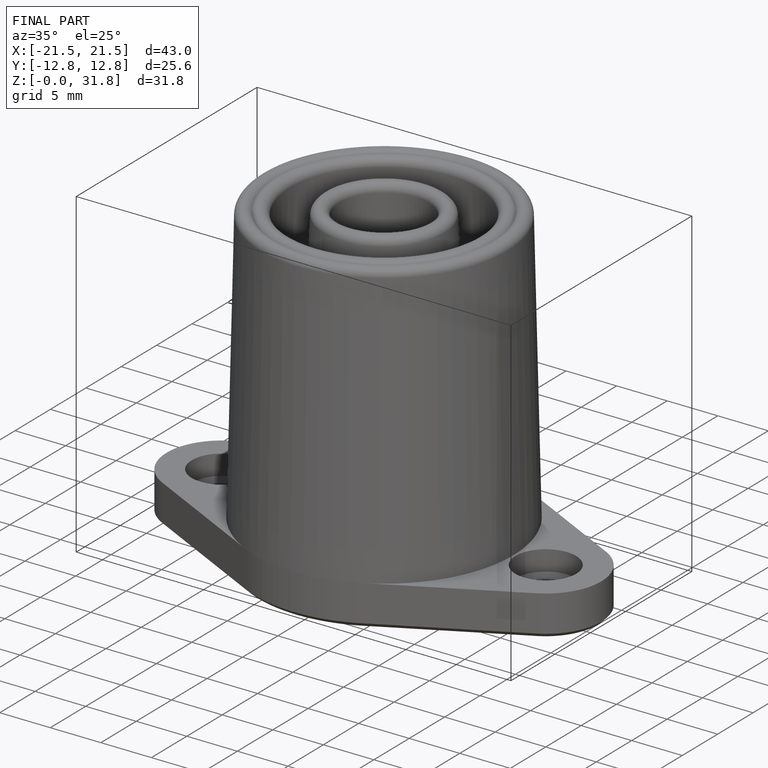
[diagram: finished part — iso view with bounding-box wireframe]
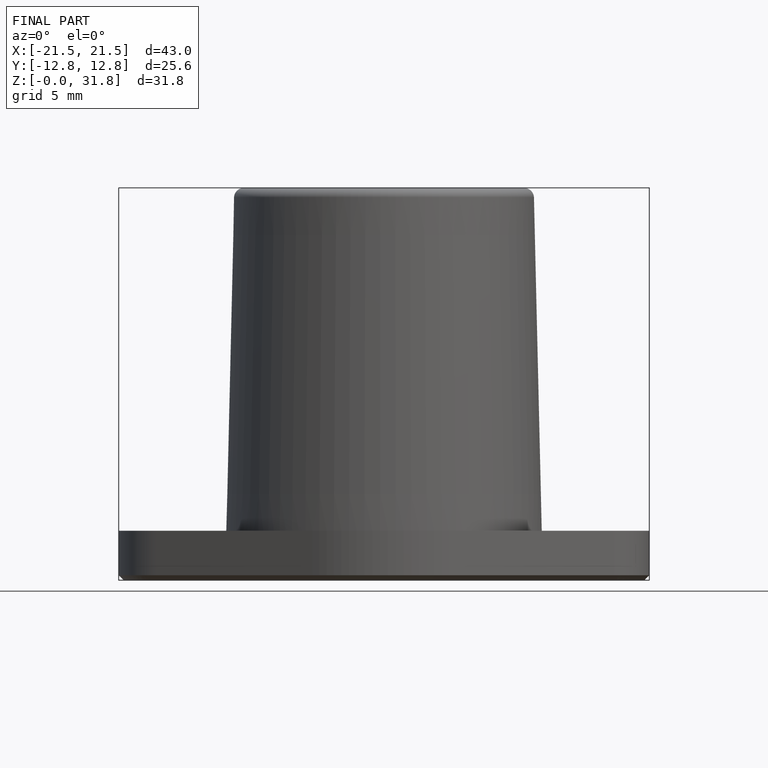
[diagram: finished part — front view with bounding-box wireframe]
